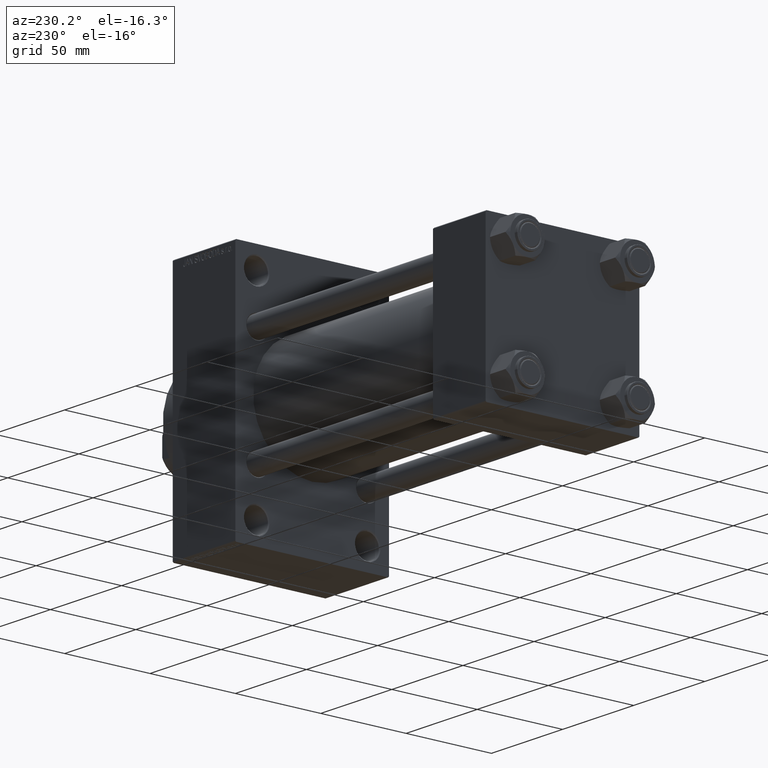
[diagram: clean part render]
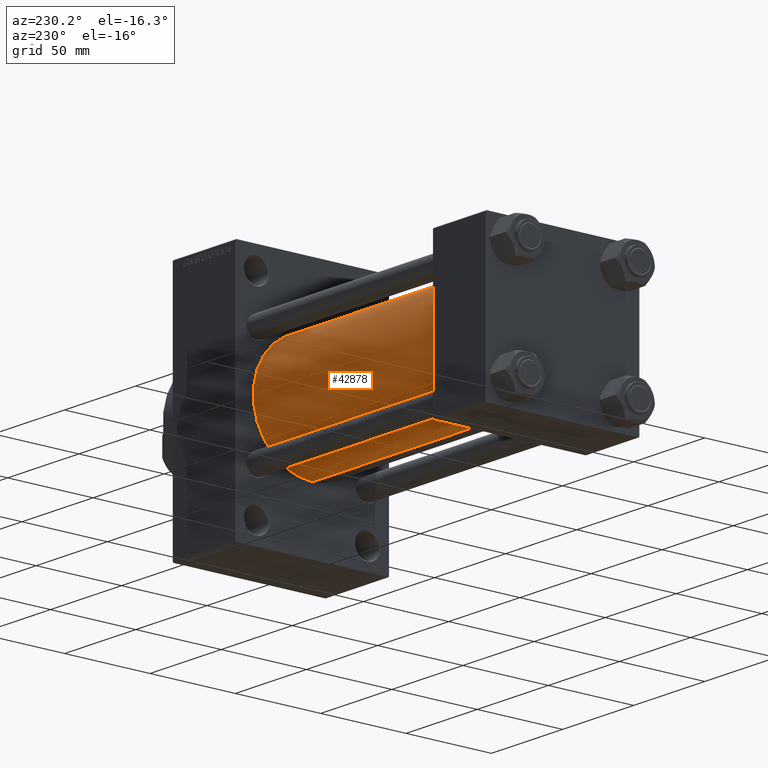
[diagram: same view with one face highlighted and labeled with its STEP entity id]
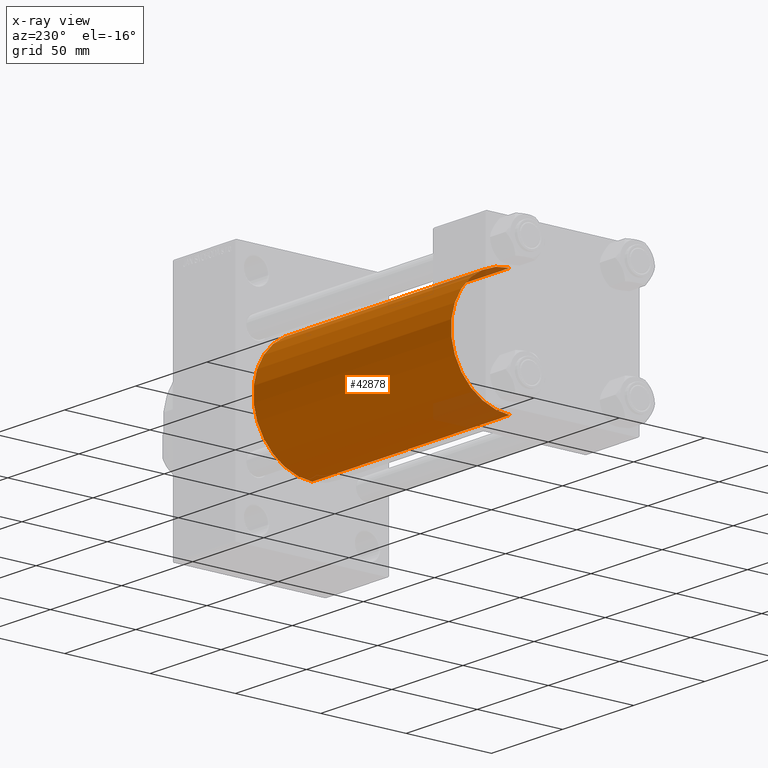
[diagram: x-ray of the same camera — body ghosted, the highlighted face saturated]
A machine part, auxiliary view. The second image highlights one B-rep face of the part: STEP entity #42878.
The next image is the same camera in x-ray: the body ghosted, the highlighted face saturated — about 6% of this face is hidden behind the body in this view.
In plain terms, the highlighted cylindrical surface (partial cylindrical patch) has radius 34.5 mm, axis along (-1, -0, -0).
Its self-contained STEP definition (entity closure, byte-faithful):
#47 = VERTEX_POINT ( 'NONE', #13259 ) ;
#409 = ORIENTED_EDGE ( 'NONE', *, *, #15403, .T. ) ;
#3321 = FACE_OUTER_BOUND ( 'NONE', #40987, .T. ) ;
#4332 = DIRECTION ( 'NONE',  ( 0.000000000000000000, 0.000000000000000000, 1.000000000000000000 ) ) ;
#5331 = VERTEX_POINT ( 'NONE', #31597 ) ;
#5989 = LINE ( 'NONE', #39572, #14165 ) ;
#7384 = DIRECTION ( 'NONE',  ( -1.000000000000000000, -0.000000000000000000, -0.000000000000000000 ) ) ;
#7557 = EDGE_CURVE ( 'NONE', #9636, #5331, #5989, .T. ) ;
#8493 = CARTESIAN_POINT ( 'NONE',  ( 176.0000000000000284, -2.602085213965210642E-15, 34.50000000000000000 ) ) ;
#8932 = AXIS2_PLACEMENT_3D ( 'NONE', #34303, #40790, #4332 ) ;
#9636 = VERTEX_POINT ( 'NONE', #38301 ) ;
#10748 = DIRECTION ( 'NONE',  ( 0.000000000000000000, 0.000000000000000000, 1.000000000000000000 ) ) ;
#11901 = CIRCLE ( 'NONE', #40264, 34.50000000000000000 ) ;
#13259 = CARTESIAN_POINT ( 'NONE',  ( 176.0000000000000284, -2.602085213965210642E-15, 34.50000000000000000 ) ) ;
#13383 = EDGE_CURVE ( 'NONE', #9636, #47, #11901, .T. ) ;
#13842 = EDGE_CURVE ( 'NONE', #47, #27868, #19060, .T. ) ;
#14165 = VECTOR ( 'NONE', #17017, 1000.000000000000000 ) ;
#15403 = EDGE_CURVE ( 'NONE', #5331, #27868, #29615, .T. ) ;
#17017 = DIRECTION ( 'NONE',  ( -1.000000000000000000, -0.000000000000000000, -0.000000000000000000 ) ) ;
#17454 = ORIENTED_EDGE ( 'NONE', *, *, #7557, .T. ) ;
#17945 = CYLINDRICAL_SURFACE ( 'NONE', #36601, 34.50000000000000000 ) ;
#19060 = LINE ( 'NONE', #8493, #34181 ) ;
#23539 = DIRECTION ( 'NONE',  ( 1.000000000000000000, 0.000000000000000000, 0.000000000000000000 ) ) ;
#26736 = DIRECTION ( 'NONE',  ( -1.000000000000000000, -0.000000000000000000, -0.000000000000000000 ) ) ;
#27868 = VERTEX_POINT ( 'NONE', #44353 ) ;
#29615 = CIRCLE ( 'NONE', #8932, 34.50000000000000000 ) ;
#31597 = CARTESIAN_POINT ( 'NONE',  ( 37.00000000000000711, 1.622946243093158675E-15, -34.50000000000000000 ) ) ;
#34181 = VECTOR ( 'NONE', #26736, 1000.000000000000000 ) ;
#34303 = CARTESIAN_POINT ( 'NONE',  ( 37.00000000000000711, -2.602085213965210642E-15, 0.000000000000000000 ) ) ;
#35952 = CARTESIAN_POINT ( 'NONE',  ( 176.0000000000000284, -2.602085213965210642E-15, 0.000000000000000000 ) ) ;
#36601 = AXIS2_PLACEMENT_3D ( 'NONE', #35952, #7384, #10748 ) ;
#37262 = ORIENTED_EDGE ( 'NONE', *, *, #13383, .F. ) ;
#38301 = CARTESIAN_POINT ( 'NONE',  ( 176.0000000000000284, 1.622946243093158675E-15, -34.50000000000000000 ) ) ;
#39572 = CARTESIAN_POINT ( 'NONE',  ( 176.0000000000000284, 1.622946243093158675E-15, -34.50000000000000000 ) ) ;
#40264 = AXIS2_PLACEMENT_3D ( 'NONE', #41781, #23539, #42021 ) ;
#40790 = DIRECTION ( 'NONE',  ( 1.000000000000000000, -0.000000000000000000, 0.000000000000000000 ) ) ;
#40987 = EDGE_LOOP ( 'NONE', ( #37262, #17454, #409, #42625 ) ) ;
#41781 = CARTESIAN_POINT ( 'NONE',  ( 176.0000000000000284, -2.602085213965210642E-15, 0.000000000000000000 ) ) ;
#42021 = DIRECTION ( 'NONE',  ( 0.000000000000000000, 0.000000000000000000, -1.000000000000000000 ) ) ;
#42625 = ORIENTED_EDGE ( 'NONE', *, *, #13842, .F. ) ;
#42878 = ADVANCED_FACE ( 'NONE', ( #3321 ), #17945, .T. ) ;
#44353 = CARTESIAN_POINT ( 'NONE',  ( 37.00000000000000711, -2.602085213965210642E-15, 34.50000000000000000 ) ) ;